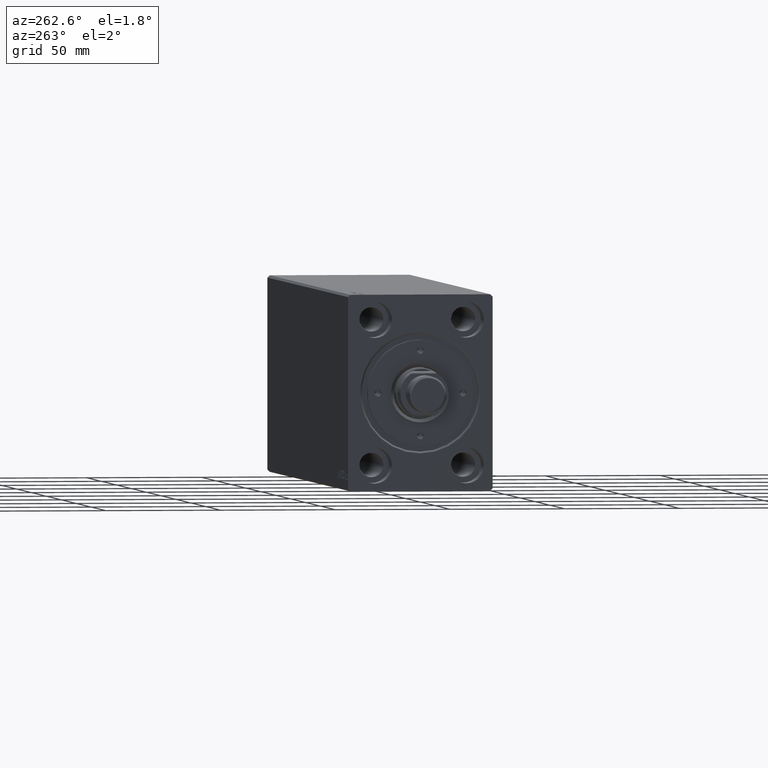
[diagram: clean part render]
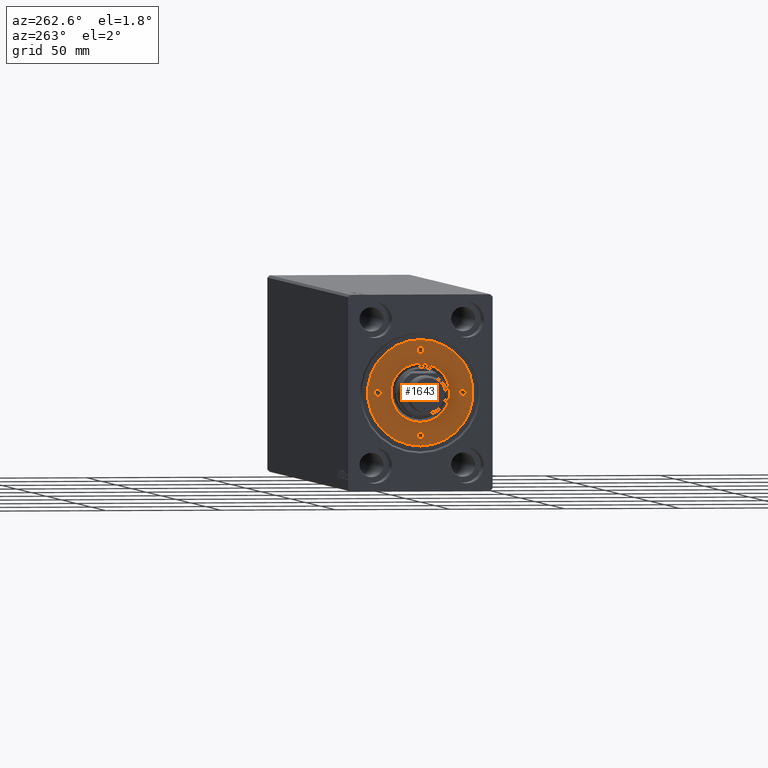
[diagram: same view with one face highlighted and labeled with its STEP entity id]
A machine part, auxiliary view. The second image highlights one B-rep face of the part: STEP entity #1643.
In plain terms, the highlighted planar face has unit normal (-1, 0, 0).
Its self-contained STEP definition (entity closure, byte-faithful):
#133 = CIRCLE ( 'NONE', #15985, 1.499999999999996891 ) ;
#217 = EDGE_CURVE ( 'NONE', #18286, #31917, #19244, .T. ) ;
#246 = ORIENTED_EDGE ( 'NONE', *, *, #31175, .F. ) ;
#501 = CIRCLE ( 'NONE', #40755, 1.499999999999996891 ) ;
#612 = CIRCLE ( 'NONE', #5686, 12.79999999999997407 ) ;
#854 = DIRECTION ( 'NONE',  ( -0.000000000000000000, -0.000000000000000000, 1.000000000000000000 ) ) ;
#1562 = ORIENTED_EDGE ( 'NONE', *, *, #26870, .T. ) ;
#1643 = ADVANCED_FACE ( 'NONE', ( #39726, #42866, #12271, #32964, #25776, #11818 ), #39504, .T. ) ;
#2188 = DIRECTION ( 'NONE',  ( -0.000000000000000000, -0.000000000000000000, 1.000000000000000000 ) ) ;
#2276 = DIRECTION ( 'NONE',  ( 1.000000000000000000, 0.000000000000000000, 0.000000000000000000 ) ) ;
#3112 = AXIS2_PLACEMENT_3D ( 'NONE', #9166, #2188, #22897 ) ;
#3472 = EDGE_CURVE ( 'NONE', #9068, #24476, #612, .T. ) ;
#4618 = CIRCLE ( 'NONE', #29783, 1.499999999999997780 ) ;
#5317 = EDGE_LOOP ( 'NONE', ( #1562, #9139 ) ) ;
#5386 = CARTESIAN_POINT ( 'NONE',  ( 23.00000000000000000, 2.816687638038912352E-15, 11.79999999999999893 ) ) ;
#5499 = ORIENTED_EDGE ( 'NONE', *, *, #29089, .F. ) ;
#5686 = AXIS2_PLACEMENT_3D ( 'NONE', #31858, #14329, #42661 ) ;
#6092 = CARTESIAN_POINT ( 'NONE',  ( 0.000000000000000000, 0.000000000000000000, 11.79999999999999893 ) ) ;
#7020 = VERTEX_POINT ( 'NONE', #14765 ) ;
#7395 = CIRCLE ( 'NONE', #13153, 23.00000000000000000 ) ;
#8117 = ORIENTED_EDGE ( 'NONE', *, *, #18852, .F. ) ;
#8124 = DIRECTION ( 'NONE',  ( 1.000000000000000000, 0.000000000000000000, 0.000000000000000000 ) ) ;
#8199 = CIRCLE ( 'NONE', #34065, 1.499999999999996891 ) ;
#8450 = CARTESIAN_POINT ( 'NONE',  ( -1.499999999999996891, 18.50000000000000000, 11.79999999999999893 ) ) ;
#8464 = ORIENTED_EDGE ( 'NONE', *, *, #31809, .F. ) ;
#8683 = CARTESIAN_POINT ( 'NONE',  ( 0.000000000000000000, 0.000000000000000000, 11.79999999999999893 ) ) ;
#8816 = DIRECTION ( 'NONE',  ( -0.000000000000000000, -0.000000000000000000, 1.000000000000000000 ) ) ;
#9068 = VERTEX_POINT ( 'NONE', #24425 ) ;
#9139 = ORIENTED_EDGE ( 'NONE', *, *, #38289, .T. ) ;
#9166 = CARTESIAN_POINT ( 'NONE',  ( 0.000000000000000000, -18.50000000000000000, 11.79999999999999893 ) ) ;
#9275 = CIRCLE ( 'NONE', #10794, 1.499999999999997780 ) ;
#10273 = CIRCLE ( 'NONE', #3112, 1.499999999999996891 ) ;
#10301 = EDGE_CURVE ( 'NONE', #24476, #9068, #10736, .T. ) ;
#10531 = DIRECTION ( 'NONE',  ( -0.000000000000000000, -0.000000000000000000, 1.000000000000000000 ) ) ;
#10736 = CIRCLE ( 'NONE', #33067, 12.79999999999997407 ) ;
#10745 = EDGE_LOOP ( 'NONE', ( #246, #25788 ) ) ;
#10794 = AXIS2_PLACEMENT_3D ( 'NONE', #12849, #8816, #2276 ) ;
#11818 = FACE_OUTER_BOUND ( 'NONE', #5317, .T. ) ;
#12271 = FACE_BOUND ( 'NONE', #28035, .T. ) ;
#12849 = CARTESIAN_POINT ( 'NONE',  ( -18.50000000000000000, 0.000000000000000000, 11.79999999999999893 ) ) ;
#13153 = AXIS2_PLACEMENT_3D ( 'NONE', #21183, #21623, #8124 ) ;
#14329 = DIRECTION ( 'NONE',  ( -0.000000000000000000, -0.000000000000000000, -1.000000000000000000 ) ) ;
#14765 = CARTESIAN_POINT ( 'NONE',  ( -23.00000000000000000, 0.000000000000000000, 11.79999999999999893 ) ) ;
#14766 = AXIS2_PLACEMENT_3D ( 'NONE', #6092, #36923, #16229 ) ;
#15029 = VERTEX_POINT ( 'NONE', #27730 ) ;
#15179 = CARTESIAN_POINT ( 'NONE',  ( 12.79999999999997407, 0.000000000000000000, 11.79999999999999893 ) ) ;
#15336 = EDGE_CURVE ( 'NONE', #15029, #27053, #9275, .T. ) ;
#15506 = DIRECTION ( 'NONE',  ( -0.000000000000000000, -0.000000000000000000, 1.000000000000000000 ) ) ;
#15727 = CARTESIAN_POINT ( 'NONE',  ( 0.000000000000000000, -18.50000000000000000, 11.79999999999999893 ) ) ;
#15985 = AXIS2_PLACEMENT_3D ( 'NONE', #15727, #15506, #36206 ) ;
#16229 = DIRECTION ( 'NONE',  ( 1.000000000000000000, 0.000000000000000000, 0.000000000000000000 ) ) ;
#16744 = CARTESIAN_POINT ( 'NONE',  ( 0.000000000000000000, 0.000000000000000000, 11.79999999999999893 ) ) ;
#17888 = DIRECTION ( 'NONE',  ( -0.000000000000000000, -0.000000000000000000, 1.000000000000000000 ) ) ;
#18286 = VERTEX_POINT ( 'NONE', #18982 ) ;
#18852 = EDGE_CURVE ( 'NONE', #31917, #18286, #38109, .T. ) ;
#18982 = CARTESIAN_POINT ( 'NONE',  ( 17.00000000000000000, 1.836970198721027222E-16, 11.79999999999999893 ) ) ;
#19038 = DIRECTION ( 'NONE',  ( 1.000000000000000000, 0.000000000000000000, -0.000000000000000000 ) ) ;
#19244 = CIRCLE ( 'NONE', #42203, 1.499999999999997780 ) ;
#19505 = EDGE_LOOP ( 'NONE', ( #26983, #5499 ) ) ;
#19967 = CARTESIAN_POINT ( 'NONE',  ( 19.99999999999999645, 0.000000000000000000, 11.79999999999999893 ) ) ;
#21183 = CARTESIAN_POINT ( 'NONE',  ( 0.000000000000000000, 0.000000000000000000, 11.79999999999999893 ) ) ;
#21546 = CARTESIAN_POINT ( 'NONE',  ( 18.50000000000000000, 0.000000000000000000, 11.79999999999999893 ) ) ;
#21623 = DIRECTION ( 'NONE',  ( 0.000000000000000000, 0.000000000000000000, 1.000000000000000000 ) ) ;
#22897 = DIRECTION ( 'NONE',  ( 1.000000000000000000, 0.000000000000000000, 0.000000000000000000 ) ) ;
#23021 = ORIENTED_EDGE ( 'NONE', *, *, #3472, .T. ) ;
#24073 = EDGE_CURVE ( 'NONE', #27687, #42926, #133, .T. ) ;
#24425 = CARTESIAN_POINT ( 'NONE',  ( -12.79999999999997407, 1.567547902908609029E-15, 11.79999999999999893 ) ) ;
#24476 = VERTEX_POINT ( 'NONE', #15179 ) ;
#24938 = CARTESIAN_POINT ( 'NONE',  ( 18.50000000000000000, 0.000000000000000000, 11.79999999999999893 ) ) ;
#25535 = CARTESIAN_POINT ( 'NONE',  ( -18.50000000000000000, 0.000000000000000000, 11.79999999999999893 ) ) ;
#25776 = FACE_BOUND ( 'NONE', #29342, .T. ) ;
#25788 = ORIENTED_EDGE ( 'NONE', *, *, #15336, .F. ) ;
#25904 = AXIS2_PLACEMENT_3D ( 'NONE', #24938, #854, #35508 ) ;
#26688 = ORIENTED_EDGE ( 'NONE', *, *, #10301, .T. ) ;
#26870 = EDGE_CURVE ( 'NONE', #7020, #35714, #7395, .T. ) ;
#26983 = ORIENTED_EDGE ( 'NONE', *, *, #43101, .F. ) ;
#27053 = VERTEX_POINT ( 'NONE', #30806 ) ;
#27580 = VERTEX_POINT ( 'NONE', #8450 ) ;
#27643 = DIRECTION ( 'NONE',  ( 1.000000000000000000, 0.000000000000000000, 0.000000000000000000 ) ) ;
#27687 = VERTEX_POINT ( 'NONE', #29111 ) ;
#27730 = CARTESIAN_POINT ( 'NONE',  ( -19.99999999999999645, 1.836970198721027222E-16, 11.79999999999999893 ) ) ;
#27745 = DIRECTION ( 'NONE',  ( 1.000000000000000000, 0.000000000000000000, 0.000000000000000000 ) ) ;
#28035 = EDGE_LOOP ( 'NONE', ( #8117, #29612 ) ) ;
#28399 = CARTESIAN_POINT ( 'NONE',  ( 0.000000000000000000, 18.50000000000000000, 11.79999999999999893 ) ) ;
#29089 = EDGE_CURVE ( 'NONE', #27580, #36727, #8199, .T. ) ;
#29111 = CARTESIAN_POINT ( 'NONE',  ( -1.499999999999996891, -18.50000000000000000, 11.79999999999999893 ) ) ;
#29342 = EDGE_LOOP ( 'NONE', ( #26688, #23021 ) ) ;
#29612 = ORIENTED_EDGE ( 'NONE', *, *, #217, .F. ) ;
#29783 = AXIS2_PLACEMENT_3D ( 'NONE', #25535, #17888, #38580 ) ;
#30234 = DIRECTION ( 'NONE',  ( -0.000000000000000000, -0.000000000000000000, -1.000000000000000000 ) ) ;
#30570 = CIRCLE ( 'NONE', #14766, 23.00000000000000000 ) ;
#30806 = CARTESIAN_POINT ( 'NONE',  ( -17.00000000000000000, 0.000000000000000000, 11.79999999999999893 ) ) ;
#31175 = EDGE_CURVE ( 'NONE', #27053, #15029, #4618, .T. ) ;
#31299 = ORIENTED_EDGE ( 'NONE', *, *, #24073, .F. ) ;
#31358 = CARTESIAN_POINT ( 'NONE',  ( 0.000000000000000000, 18.50000000000000000, 11.79999999999999893 ) ) ;
#31809 = EDGE_CURVE ( 'NONE', #42926, #27687, #10273, .T. ) ;
#31858 = CARTESIAN_POINT ( 'NONE',  ( 0.000000000000000000, 0.000000000000000000, 11.79999999999999893 ) ) ;
#31917 = VERTEX_POINT ( 'NONE', #19967 ) ;
#32964 = FACE_BOUND ( 'NONE', #35556, .T. ) ;
#33067 = AXIS2_PLACEMENT_3D ( 'NONE', #16744, #30234, #41232 ) ;
#34065 = AXIS2_PLACEMENT_3D ( 'NONE', #28399, #41247, #27745 ) ;
#34132 = CARTESIAN_POINT ( 'NONE',  ( 1.499999999999996891, 18.50000000000000000, 11.79999999999999893 ) ) ;
#34745 = DIRECTION ( 'NONE',  ( 1.000000000000000000, 0.000000000000000000, 0.000000000000000000 ) ) ;
#35458 = CARTESIAN_POINT ( 'NONE',  ( 1.499999999999996891, -18.50000000000000000, 11.79999999999999893 ) ) ;
#35508 = DIRECTION ( 'NONE',  ( 1.000000000000000000, 0.000000000000000000, 0.000000000000000000 ) ) ;
#35556 = EDGE_LOOP ( 'NONE', ( #8464, #31299 ) ) ;
#35714 = VERTEX_POINT ( 'NONE', #5386 ) ;
#36125 = DIRECTION ( 'NONE',  ( 0.000000000000000000, 0.000000000000000000, 1.000000000000000000 ) ) ;
#36206 = DIRECTION ( 'NONE',  ( 1.000000000000000000, 0.000000000000000000, 0.000000000000000000 ) ) ;
#36727 = VERTEX_POINT ( 'NONE', #34132 ) ;
#36923 = DIRECTION ( 'NONE',  ( 0.000000000000000000, 0.000000000000000000, 1.000000000000000000 ) ) ;
#38109 = CIRCLE ( 'NONE', #25904, 1.499999999999997780 ) ;
#38289 = EDGE_CURVE ( 'NONE', #35714, #7020, #30570, .T. ) ;
#38580 = DIRECTION ( 'NONE',  ( 1.000000000000000000, 0.000000000000000000, 0.000000000000000000 ) ) ;
#38783 = DIRECTION ( 'NONE',  ( -0.000000000000000000, -0.000000000000000000, 1.000000000000000000 ) ) ;
#39504 = PLANE ( 'NONE',  #40812 ) ;
#39726 = FACE_BOUND ( 'NONE', #10745, .T. ) ;
#40755 = AXIS2_PLACEMENT_3D ( 'NONE', #31358, #38783, #34745 ) ;
#40812 = AXIS2_PLACEMENT_3D ( 'NONE', #8683, #36125, #19038 ) ;
#41232 = DIRECTION ( 'NONE',  ( 1.000000000000000000, 0.000000000000000000, 0.000000000000000000 ) ) ;
#41247 = DIRECTION ( 'NONE',  ( -0.000000000000000000, -0.000000000000000000, 1.000000000000000000 ) ) ;
#42203 = AXIS2_PLACEMENT_3D ( 'NONE', #21546, #10531, #27643 ) ;
#42661 = DIRECTION ( 'NONE',  ( 1.000000000000000000, 0.000000000000000000, 0.000000000000000000 ) ) ;
#42866 = FACE_BOUND ( 'NONE', #19505, .T. ) ;
#42926 = VERTEX_POINT ( 'NONE', #35458 ) ;
#43101 = EDGE_CURVE ( 'NONE', #36727, #27580, #501, .T. ) ;